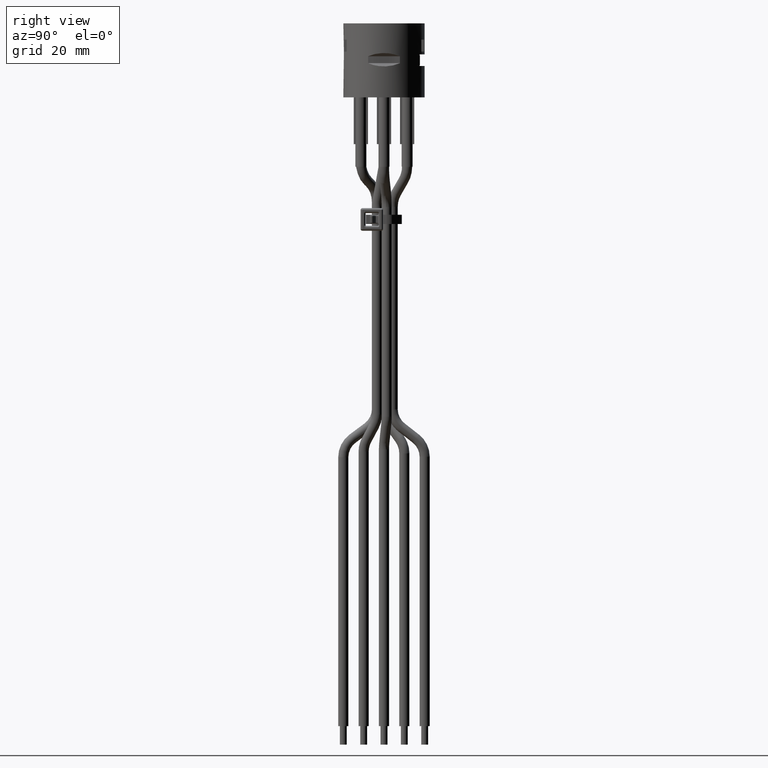
[diagram: clean part render]
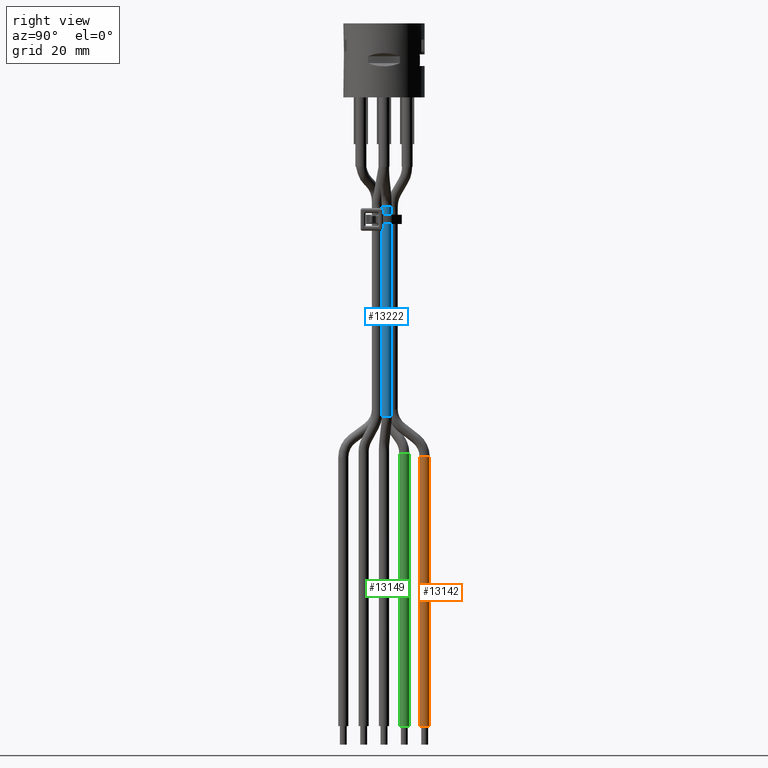
[diagram: same view with three faces highlighted in distinct colors, each labeled with its STEP entity id]
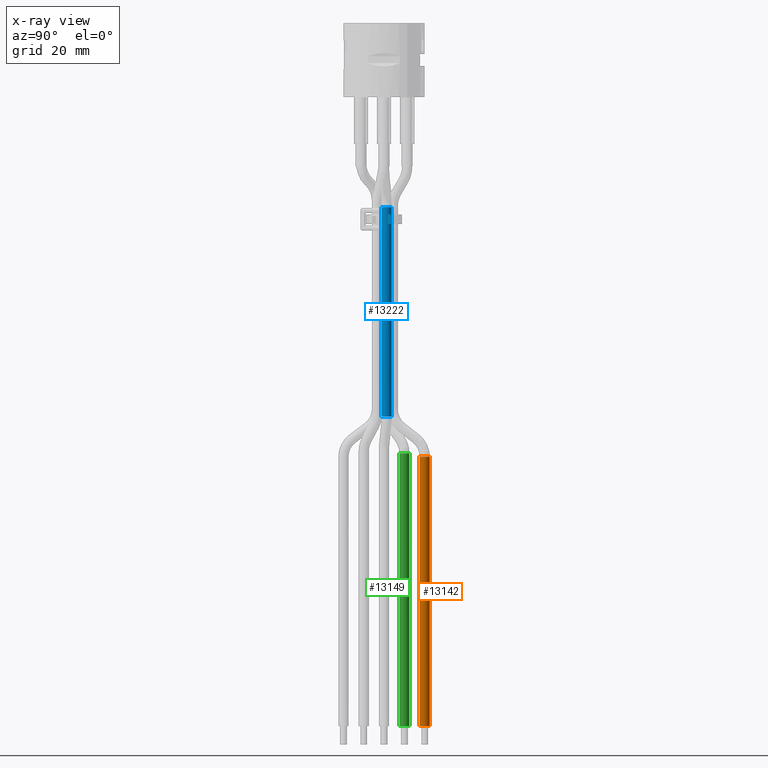
[diagram: x-ray of the same camera — body ghosted, the three highlighted faces saturated]
A machine part, right view with three faces highlighted in distinct colors.
The next image is the same camera in x-ray (body ghosted, the three faces saturated) — at least one of them is partly hidden behind the body in this view.
Their STEP definitions:

[orange] entity #13142 — the highlighted cylindrical surface (bore or boss wall) has radius 1.1 mm, axis along (-0, 0, -1).
#545=CIRCLE('',#13975,1.1);
#546=CIRCLE('',#13976,1.1);
#547=CIRCLE('',#13977,1.1);
#703=CYLINDRICAL_SURFACE('',#13974,1.1);
#1312=FACE_OUTER_BOUND('',#2023,.T.);
#2023=EDGE_LOOP('',(#11559,#11560,#11561,#11562,#11563));
#3504=LINE('',#22096,#4966);
#4966=VECTOR('',#17051,1.1);
#6164=VERTEX_POINT('',#22093);
#6165=VERTEX_POINT('',#22095);
#6166=VERTEX_POINT('',#22097);
#8004=EDGE_CURVE('',#6164,#6164,#545,.T.);
#8005=EDGE_CURVE('',#6164,#6165,#3504,.T.);
#8006=EDGE_CURVE('',#6165,#6166,#546,.T.);
#8007=EDGE_CURVE('',#6166,#6165,#547,.T.);
#11559=ORIENTED_EDGE('',*,*,#8004,.F.);
#11560=ORIENTED_EDGE('',*,*,#8005,.T.);
#11561=ORIENTED_EDGE('',*,*,#8006,.T.);
#11562=ORIENTED_EDGE('',*,*,#8007,.T.);
#11563=ORIENTED_EDGE('',*,*,#8005,.F.);
#13142=ADVANCED_FACE('',(#1312),#703,.T.);
#13974=AXIS2_PLACEMENT_3D('',#22092,#17047,#17048);
#13975=AXIS2_PLACEMENT_3D('',#22094,#17049,#17050);
#13976=AXIS2_PLACEMENT_3D('',#22098,#17052,#17053);
#13977=AXIS2_PLACEMENT_3D('',#22099,#17054,#17055);
#17047=DIRECTION('center_axis',(-1.80367873414688E-15,5.05196216376713E-15,
-1.));
#17048=DIRECTION('ref_axis',(-4.40213369194208E-15,1.,5.05196216376713E-15));
#17049=DIRECTION('center_axis',(-1.94093872918354E-15,4.8299175588421E-15,
-1.));
#17050=DIRECTION('ref_axis',(-4.40213369194208E-15,1.,4.80720845152023E-15));
#17051=DIRECTION('',(1.80367873414688E-15,-5.05196216376713E-15,1.));
#17052=DIRECTION('center_axis',(-1.94093872918354E-15,4.8299175588421E-15,
-1.));
#17053=DIRECTION('ref_axis',(-4.40213369194208E-15,1.,4.80720845152023E-15));
#17054=DIRECTION('center_axis',(-1.94093872918354E-15,4.8299175588421E-15,
-1.));
#17055=DIRECTION('ref_axis',(-4.40213369194208E-15,1.,4.80720845152023E-15));
#22092=CARTESIAN_POINT('Origin',(-0.0214932559555814,8.80000000000035,-77.3404753593479));
#22093=CARTESIAN_POINT('',(-0.0214932559556811,7.70000000000063,-135.6));
#22094=CARTESIAN_POINT('Origin',(-0.0214932559556865,8.80000000000065,-135.6));
#22095=CARTESIAN_POINT('',(-0.021493255955576,7.70000000000033,-77.3404753593479));
#22096=CARTESIAN_POINT('',(-0.0214932559555767,7.70000000000035,-77.3404753593479));
#22097=CARTESIAN_POINT('',(-0.0180767144076264,7.7000053058114,-77.3404753593479));
#22098=CARTESIAN_POINT('Origin',(-0.0214932559555814,8.80000000000035,-77.3404753593479));
#22099=CARTESIAN_POINT('Origin',(-0.0214932559555814,8.80000000000035,-77.3404753593479));

[blue] entity #13222 — the highlighted cylindrical surface (bore or boss wall) has radius 1.1 mm, axis along (-0, 0, -1).
#350=FACE_BOUND('',#2110,.T.);
#440=CIRCLE('',#13755,1.1);
#450=CIRCLE('',#13781,1.1);
#645=CIRCLE('',#14153,1.1);
#646=CIRCLE('',#14154,1.1);
#657=CIRCLE('',#14169,1.1);
#658=CIRCLE('',#14170,1.1);
#731=CYLINDRICAL_SURFACE('',#14171,1.1);
#1392=FACE_OUTER_BOUND('',#2109,.T.);
#2109=EDGE_LOOP('',(#12049,#12050,#12051,#12052,#12053,#12054));
#2110=EDGE_LOOP('',(#12055,#12056,#12057,#12058));
#3374=LINE('',#21199,#4836);
#3403=LINE('',#21315,#4865);
#3574=LINE('',#23047,#5036);
#4836=VECTOR('',#16507,10.);
#4865=VECTOR('',#16574,10.);
#5036=VECTOR('',#17513,1.1);
#5999=VERTEX_POINT('',#21122);
#6000=VERTEX_POINT('',#21124);
#6024=VERTEX_POINT('',#21198);
#6037=VERTEX_POINT('',#21268);
#6287=VERTEX_POINT('',#23015);
#6288=VERTEX_POINT('',#23016);
#6296=VERTEX_POINT('',#23041);
#6297=VERTEX_POINT('',#23043);
#7724=EDGE_CURVE('',#6000,#5999,#440,.T.);
#7757=EDGE_CURVE('',#6024,#6000,#3374,.T.);
#7777=EDGE_CURVE('',#6037,#6024,#450,.T.);
#7796=EDGE_CURVE('',#6037,#5999,#3403,.T.);
#8202=EDGE_CURVE('',#6287,#6288,#645,.T.);
#8203=EDGE_CURVE('',#6288,#6287,#646,.T.);
#8216=EDGE_CURVE('',#6296,#6297,#657,.T.);
#8217=EDGE_CURVE('',#6297,#6296,#658,.T.);
#8218=EDGE_CURVE('',#6297,#6287,#3574,.T.);
#12049=ORIENTED_EDGE('',*,*,#8217,.F.);
#12050=ORIENTED_EDGE('',*,*,#8218,.T.);
#12051=ORIENTED_EDGE('',*,*,#8202,.T.);
#12052=ORIENTED_EDGE('',*,*,#8203,.T.);
#12053=ORIENTED_EDGE('',*,*,#8218,.F.);
#12054=ORIENTED_EDGE('',*,*,#8216,.F.);
#12055=ORIENTED_EDGE('',*,*,#7724,.T.);
#12056=ORIENTED_EDGE('',*,*,#7796,.F.);
#12057=ORIENTED_EDGE('',*,*,#7777,.T.);
#12058=ORIENTED_EDGE('',*,*,#7757,.T.);
#13222=ADVANCED_FACE('',(#1392,#350),#731,.T.);
#13755=AXIS2_PLACEMENT_3D('',#21125,#16455,#16456);
#13781=AXIS2_PLACEMENT_3D('',#21269,#16545,#16546);
#14153=AXIS2_PLACEMENT_3D('',#23017,#17473,#17474);
#14154=AXIS2_PLACEMENT_3D('',#23018,#17475,#17476);
#14169=AXIS2_PLACEMENT_3D('',#23044,#17507,#17508);
#14170=AXIS2_PLACEMENT_3D('',#23045,#17509,#17510);
#14171=AXIS2_PLACEMENT_3D('',#23046,#17511,#17512);
#16455=DIRECTION('center_axis',(4.89801263142938E-15,1.22323376557195E-14,
-1.));
#16456=DIRECTION('ref_axis',(-4.88632852579072E-15,1.,5.01032880034369E-15));
#16507=DIRECTION('',(-1.85962356624713E-15,5.01032880034368E-15,-1.));
#16545=DIRECTION('center_axis',(-4.89801263142938E-15,-1.22323376557195E-14,
1.));
#16546=DIRECTION('ref_axis',(-4.88632852579072E-15,1.,5.01032880034369E-15));
#16574=DIRECTION('',(-1.85962356624713E-15,5.01032880034368E-15,-1.));
#17473=DIRECTION('center_axis',(-2.4147350785597E-15,5.0242065881515E-15,
-1.));
#17474=DIRECTION('ref_axis',(-4.88632852579072E-15,1.,5.02010633266284E-15));
#17475=DIRECTION('center_axis',(-2.4147350785597E-15,5.0242065881515E-15,
-1.));
#17476=DIRECTION('ref_axis',(-4.88632852579072E-15,1.,5.02010633266284E-15));
#17507=DIRECTION('center_axis',(-2.4147350785597E-15,5.0242065881515E-15,
-1.));
#17508=DIRECTION('ref_axis',(-4.88632852579072E-15,1.,5.02010633266284E-15));
#17509=DIRECTION('center_axis',(-2.4147350785597E-15,5.0242065881515E-15,
-1.));
#17510=DIRECTION('ref_axis',(-4.88632852579072E-15,1.,5.02010633266284E-15));
#17511=DIRECTION('center_axis',(-1.85962356624713E-15,5.01032880034368E-15,
-1.));
#17512=DIRECTION('ref_axis',(-4.88632852579072E-15,1.,5.01032880034369E-15));
#17513=DIRECTION('',(1.85962356624713E-15,-5.01032880034368E-15,1.));
#21122=CARTESIAN_POINT('',(2.88798625063492,0.580951949424903,-26.9999999999999));
#21124=CARTESIAN_POINT('',(2.43455002800296,1.470870643349,-26.9999999999999));
#21125=CARTESIAN_POINT('Origin',(1.78798625063486,0.580951949425001,-26.9999999999999));
#21198=CARTESIAN_POINT('',(2.43455002800295,1.47087064334898,-24.9999999999999));
#21199=CARTESIAN_POINT('',(2.43455002800286,1.47087064334902,-23.3322083397352));
#21268=CARTESIAN_POINT('',(2.88798625063491,0.580951949424879,-24.9999999999999));
#21269=CARTESIAN_POINT('Origin',(1.78798625063486,0.580951949424991,-24.9999999999999));
#21315=CARTESIAN_POINT('',(2.8879862506349,0.580951949424982,-23.3322083397352));
#23015=CARTESIAN_POINT('',(1.78798625063487,-0.519048050575018,-23.3322083397352));
#23016=CARTESIAN_POINT('',(2.87767003431947,0.430654738623223,-23.3322083397352));
#23017=CARTESIAN_POINT('Origin',(1.78798625063486,0.580951949424983,-23.3322083397352));
#23018=CARTESIAN_POINT('Origin',(1.78798625063486,0.580951949424983,-23.3322083397352));
#23041=CARTESIAN_POINT('',(0.740642509699967,0.244691502264565,-68.6458376843686));
#23043=CARTESIAN_POINT('',(1.78798625063478,-0.519048050574791,-68.6458376843686));
#23044=CARTESIAN_POINT('Origin',(1.78798625063478,0.58095194942521,-68.6458376843686));
#23045=CARTESIAN_POINT('Origin',(1.78798625063478,0.58095194942521,-68.6458376843686));
#23046=CARTESIAN_POINT('Origin',(1.78798625063486,0.580951949424983,-23.3322083397352));
#23047=CARTESIAN_POINT('',(1.78798625063487,-0.519048050575018,-23.3322083397352));

[green] entity #13149 — the highlighted cylindrical surface (bore or boss wall) has radius 1.1 mm, axis along (-0, 0, -1).
#560=CIRCLE('',#13997,1.1);
#561=CIRCLE('',#13998,1.1);
#562=CIRCLE('',#13999,1.1);
#706=CYLINDRICAL_SURFACE('',#13996,1.1);
#1319=FACE_OUTER_BOUND('',#2032,.T.);
#2032=EDGE_LOOP('',(#11602,#11603,#11604,#11605,#11606));
#3507=LINE('',#22132,#4969);
#4969=VECTOR('',#17098,1.1);
#6175=VERTEX_POINT('',#22129);
#6176=VERTEX_POINT('',#22131);
#6177=VERTEX_POINT('',#22133);
#8022=EDGE_CURVE('',#6175,#6175,#560,.T.);
#8023=EDGE_CURVE('',#6175,#6176,#3507,.T.);
#8024=EDGE_CURVE('',#6176,#6177,#561,.T.);
#8025=EDGE_CURVE('',#6177,#6176,#562,.T.);
#11602=ORIENTED_EDGE('',*,*,#8022,.F.);
#11603=ORIENTED_EDGE('',*,*,#8023,.T.);
#11604=ORIENTED_EDGE('',*,*,#8024,.T.);
#11605=ORIENTED_EDGE('',*,*,#8025,.T.);
#11606=ORIENTED_EDGE('',*,*,#8023,.F.);
#13149=ADVANCED_FACE('',(#1319),#706,.T.);
#13996=AXIS2_PLACEMENT_3D('',#22128,#17094,#17095);
#13997=AXIS2_PLACEMENT_3D('',#22130,#17096,#17097);
#13998=AXIS2_PLACEMENT_3D('',#22134,#17099,#17100);
#13999=AXIS2_PLACEMENT_3D('',#22135,#17101,#17102);
#17094=DIRECTION('center_axis',(-1.8318679906315E-15,4.8299175588421E-15,
-1.));
#17095=DIRECTION('ref_axis',(-4.77593703186492E-15,1.,4.82991755884211E-15));
#17096=DIRECTION('center_axis',(-1.85962356624713E-15,4.94093986130461E-15,
-1.));
#17097=DIRECTION('ref_axis',(-4.77593703186492E-15,1.,5.12261271987965E-15));
#17098=DIRECTION('',(1.8318679906315E-15,-4.8299175588421E-15,1.));
#17099=DIRECTION('center_axis',(-1.85962356624713E-15,4.94093986130461E-15,
-1.));
#17100=DIRECTION('ref_axis',(-4.77593703186492E-15,1.,5.12261271987965E-15));
#17101=DIRECTION('center_axis',(-1.85962356624713E-15,4.94093986130461E-15,
-1.));
#17102=DIRECTION('ref_axis',(-4.77593703186492E-15,1.,5.12261271987965E-15));
#22128=CARTESIAN_POINT('Origin',(-0.0214932559555636,4.40000000000031,-76.6180539650621));
#22129=CARTESIAN_POINT('',(-0.021493255955662,3.3000000000006,-135.6));
#22130=CARTESIAN_POINT('Origin',(-0.0214932559556716,4.4000000000006,-135.6));
#22131=CARTESIAN_POINT('',(-0.021493255955554,3.30000000000032,-76.6180539650621));
#22132=CARTESIAN_POINT('',(-0.0214932559555585,3.30000000000031,-76.6180539650621));
#22133=CARTESIAN_POINT('',(-0.483287980701574,3.40162850992422,-76.6180539650621));
#22134=CARTESIAN_POINT('Origin',(-0.0214932559555636,4.40000000000031,-76.6180539650621));
#22135=CARTESIAN_POINT('Origin',(-0.0214932559555636,4.40000000000031,-76.6180539650621));